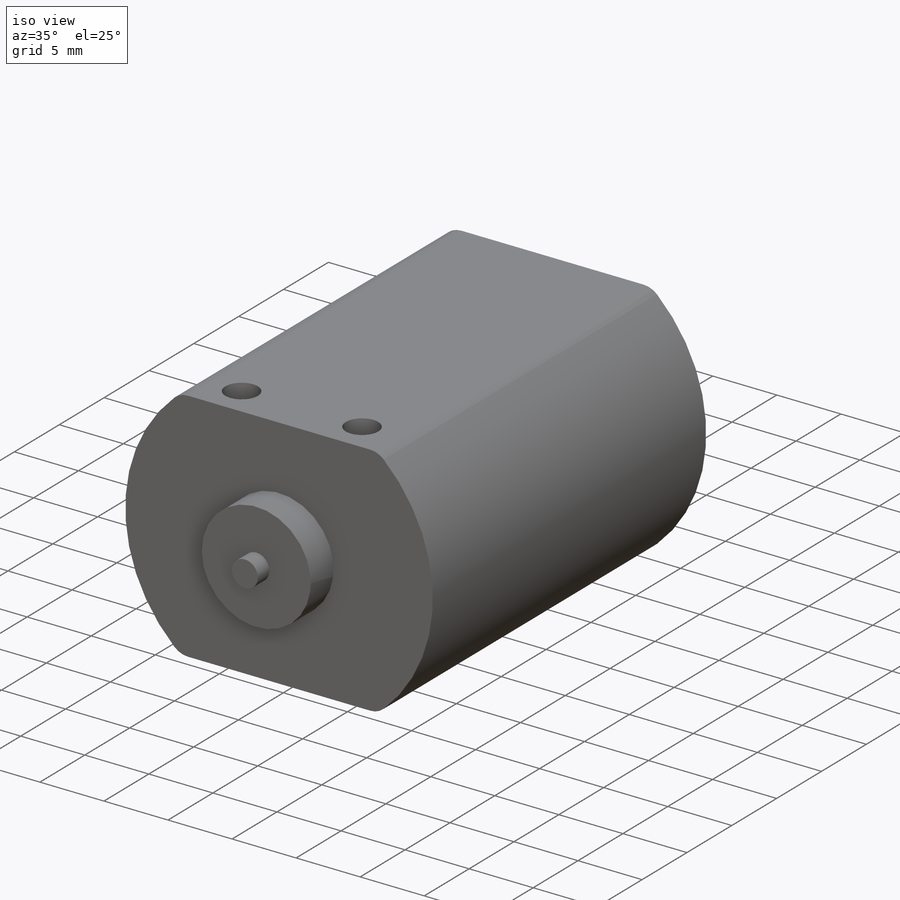
[diagram: iso view]
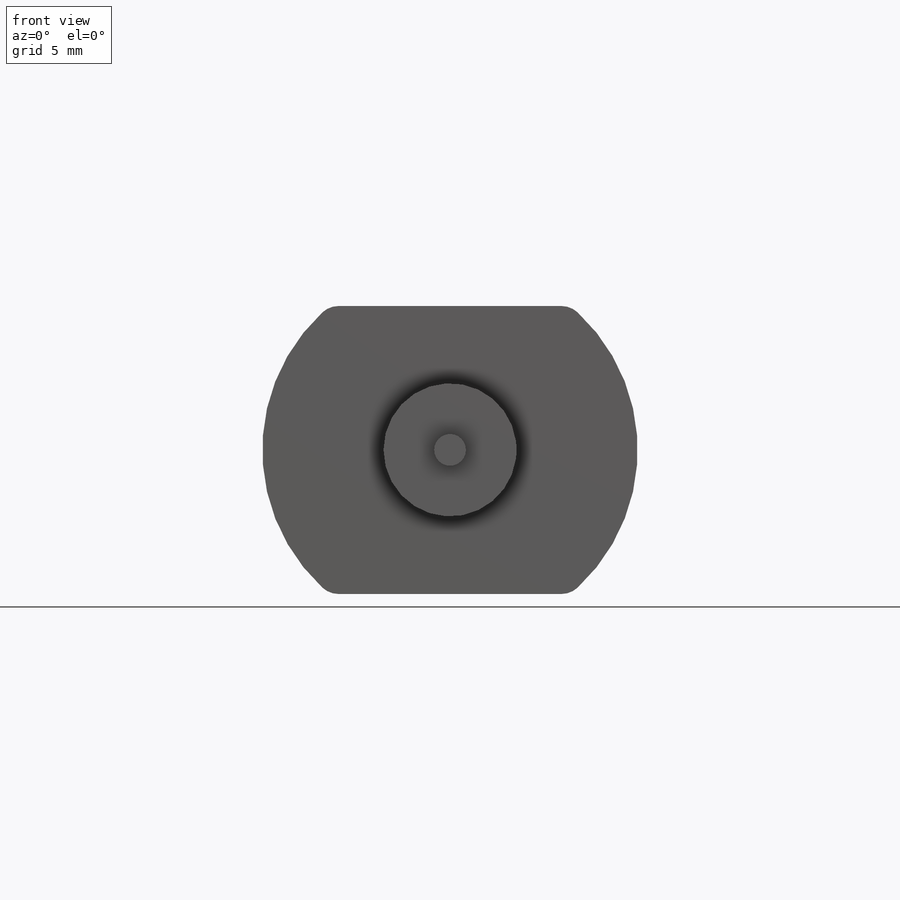
[diagram: front view]
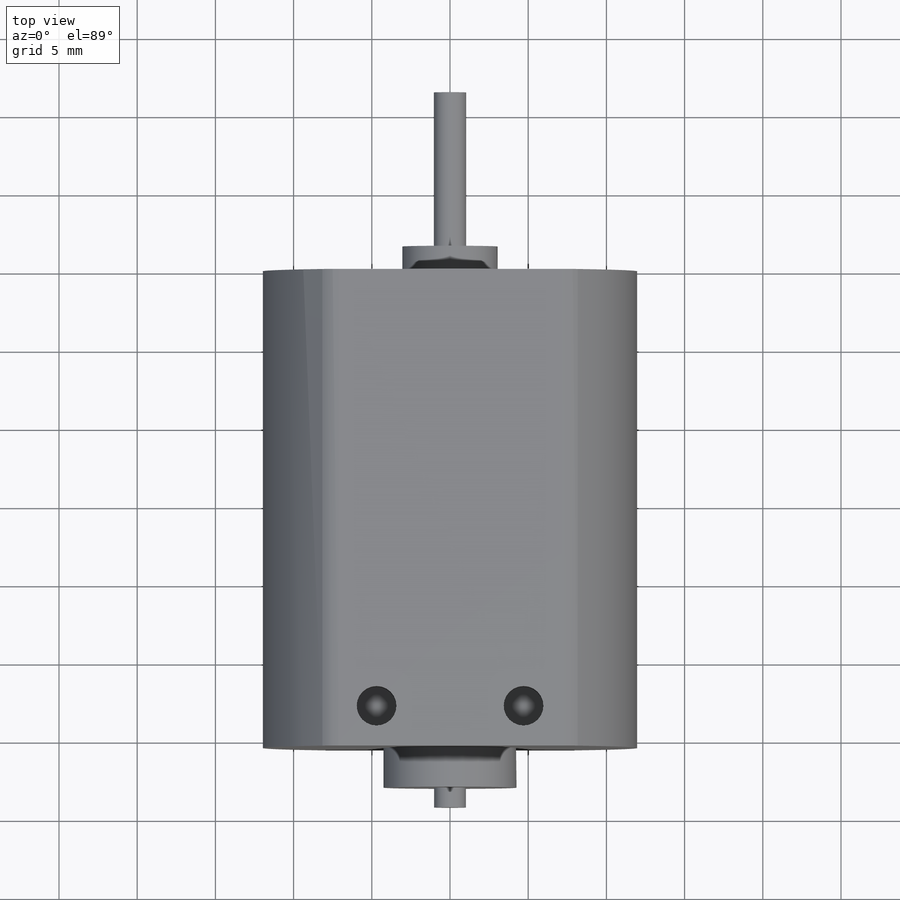
[diagram: top view]
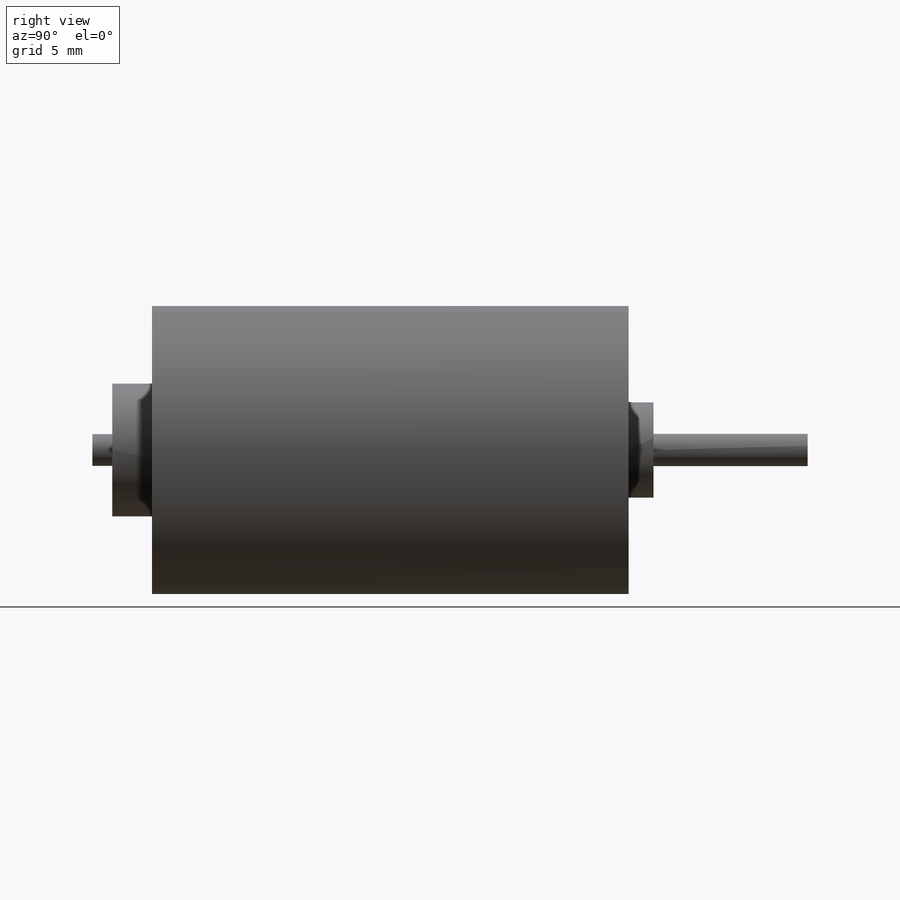
[diagram: right view]
SOLIDWORKS PART (.sldprt)
format: sldprt  version: not decoded by parser v0  size: 198,144 bytes
history: native  units: mm
features: sketch x6, extrude x5, material x1, cut_extrude x1 (+13 scaffold rows collapsed)
feature tree (26):
  scaffold x13  (default folders/planes/origin — collapsed)
  material  "6061 Alloy"
  sketch  "Sketch1"  dims[c1.D1=1.524mm c1.D2=~16.436893mm c1.D4=12.0015mm c2.D1=18.415mm c2.D2=9.2075mm c2.D3=9.2075mm]
  extrude  "Boss-Extrude1"  Depth=30.48mm
  sketch  "Sketch2"  dims[D1=3.2853mm]
  extrude  "Boss-Extrude2"  Depth=2.54mm
  sketch  "Sketch3"  dims[D1=~1.116469mm]
  extrude  "Boss-Extrude3"  Depth=1.27mm
  sketch  "Sketch4"  dims[D1=~2.623781mm]
  extrude  "Boss-Extrude4"  Depth=1.5875mm
  sketch  "Sketch5"  dims[D1=~0.956123mm]
  extrude  "Boss-Extrude5"  Depth=9.8552mm
  sketch  "Sketch6"  dims[c1.D3=~1.326125mm c1.D2=4.699mm c2.D3=4.699mm c2.D1=2.54mm]
  cut_extrude  "Cut-Extrude1"  Depth=3.175mm
decode coverage: 12 of 12 modeling features carry decoded parameters
note: ~ marks probable driven/reference dimensions
note: suppression state not decoded; provenance and decode notes live in map.json
